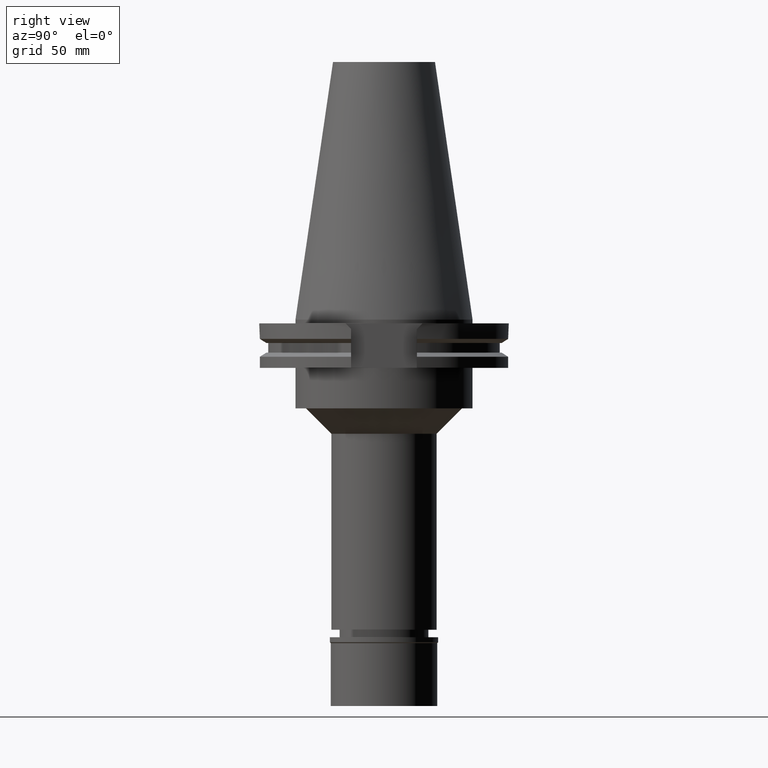
[diagram: clean part render]
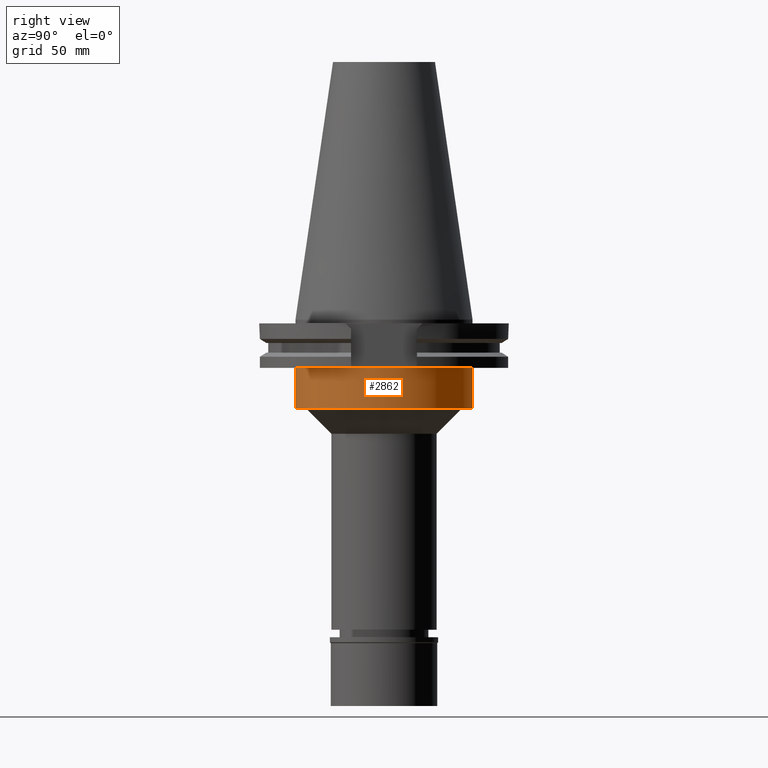
[diagram: same view with one face highlighted and labeled with its STEP entity id]
A machine part, right view. The second image highlights one B-rep face of the part: STEP entity #2862.
In plain terms, the highlighted cylindrical surface (partial cylindrical patch) has radius 34.925 mm, axis along (0, 0, -1).
Its self-contained STEP definition (entity closure, byte-faithful):
#56 = DIRECTION ( 'NONE',  ( 0.0000000000000000000, 0.0000000000000000000, -1.000000000000000000 ) ) ;
#59 = EDGE_CURVE ( 'NONE', #3099, #2638, #2922, .T. ) ;
#267 = AXIS2_PLACEMENT_3D ( 'NONE', #2164, #2707, #1379 ) ;
#315 = VECTOR ( 'NONE', #56, 1000.000000000000000 ) ;
#365 = CARTESIAN_POINT ( 'NONE',  ( 0.0000000000000000000, -34.92499999999999716, -19.05000000000000071 ) ) ;
#510 = CARTESIAN_POINT ( 'NONE',  ( 0.0000000000000000000, 34.92499999999999716, -19.05000000000000071 ) ) ;
#546 = ORIENTED_EDGE ( 'NONE', *, *, #569, .T. ) ;
#569 = EDGE_CURVE ( 'NONE', #3099, #2856, #3114, .T. ) ;
#939 = CARTESIAN_POINT ( 'NONE',  ( 0.0000000000000000000, -34.92499999999999716, -19.05000000000000071 ) ) ;
#1019 = CARTESIAN_POINT ( 'NONE',  ( 0.0000000000000000000, 34.92499999999999716, -35.00000000000000000 ) ) ;
#1054 = DIRECTION ( 'NONE',  ( 0.0000000000000000000, 1.000000000000000000, 0.0000000000000000000 ) ) ;
#1064 = AXIS2_PLACEMENT_3D ( 'NONE', #2962, #2137, #1372 ) ;
#1335 = AXIS2_PLACEMENT_3D ( 'NONE', #2828, #1592, #1054 ) ;
#1342 = CARTESIAN_POINT ( 'NONE',  ( 0.0000000000000000000, -34.92499999999999716, -35.00000000000000000 ) ) ;
#1372 = DIRECTION ( 'NONE',  ( 0.0000000000000000000, -1.000000000000000000, 0.0000000000000000000 ) ) ;
#1379 = DIRECTION ( 'NONE',  ( 0.0000000000000000000, -1.000000000000000000, 0.0000000000000000000 ) ) ;
#1481 = LINE ( 'NONE', #939, #1611 ) ;
#1592 = DIRECTION ( 'NONE',  ( 0.0000000000000000000, 0.0000000000000000000, -1.000000000000000000 ) ) ;
#1611 = VECTOR ( 'NONE', #3026, 1000.000000000000000 ) ;
#1614 = CIRCLE ( 'NONE', #1064, 34.92499999999999716 ) ;
#1653 = FACE_OUTER_BOUND ( 'NONE', #2601, .T. ) ;
#2137 = DIRECTION ( 'NONE',  ( 0.0000000000000000000, 0.0000000000000000000, 1.000000000000000000 ) ) ;
#2164 = CARTESIAN_POINT ( 'NONE',  ( 0.0000000000000000000, 2.617682533176999626E-14, 113.7500000000000000 ) ) ;
#2170 = ORIENTED_EDGE ( 'NONE', *, *, #59, .F. ) ;
#2368 = CYLINDRICAL_SURFACE ( 'NONE', #267, 34.92499999999999716 ) ;
#2386 = ORIENTED_EDGE ( 'NONE', *, *, #2996, .T. ) ;
#2601 = EDGE_LOOP ( 'NONE', ( #546, #2386, #2776, #2170 ) ) ;
#2638 = VERTEX_POINT ( 'NONE', #1019 ) ;
#2707 = DIRECTION ( 'NONE',  ( 0.0000000000000000000, 0.0000000000000000000, -1.000000000000000000 ) ) ;
#2776 = ORIENTED_EDGE ( 'NONE', *, *, #3316, .T. ) ;
#2828 = CARTESIAN_POINT ( 'NONE',  ( 0.0000000000000000000, 2.617682533176999626E-14, -19.05000000000000071 ) ) ;
#2856 = VERTEX_POINT ( 'NONE', #365 ) ;
#2862 = ADVANCED_FACE ( 'NONE', ( #1653 ), #2368, .T. ) ;
#2922 = LINE ( 'NONE', #3152, #315 ) ;
#2962 = CARTESIAN_POINT ( 'NONE',  ( 0.0000000000000000000, 2.617682533176999626E-14, -35.00000000000000000 ) ) ;
#2996 = EDGE_CURVE ( 'NONE', #2856, #3266, #1481, .T. ) ;
#3026 = DIRECTION ( 'NONE',  ( 0.0000000000000000000, 0.0000000000000000000, -1.000000000000000000 ) ) ;
#3099 = VERTEX_POINT ( 'NONE', #510 ) ;
#3114 = CIRCLE ( 'NONE', #1335, 34.92499999999999716 ) ;
#3152 = CARTESIAN_POINT ( 'NONE',  ( 0.0000000000000000000, 34.92499999999999716, -19.05000000000000071 ) ) ;
#3266 = VERTEX_POINT ( 'NONE', #1342 ) ;
#3316 = EDGE_CURVE ( 'NONE', #3266, #2638, #1614, .T. ) ;